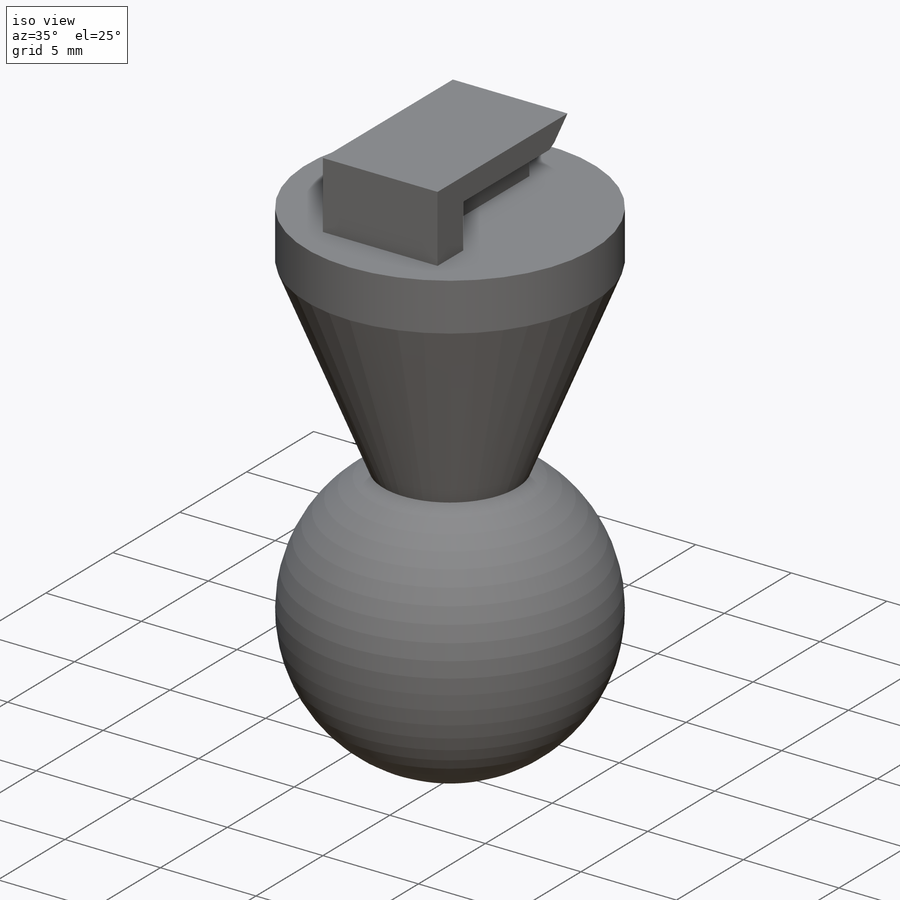
[diagram: iso view]
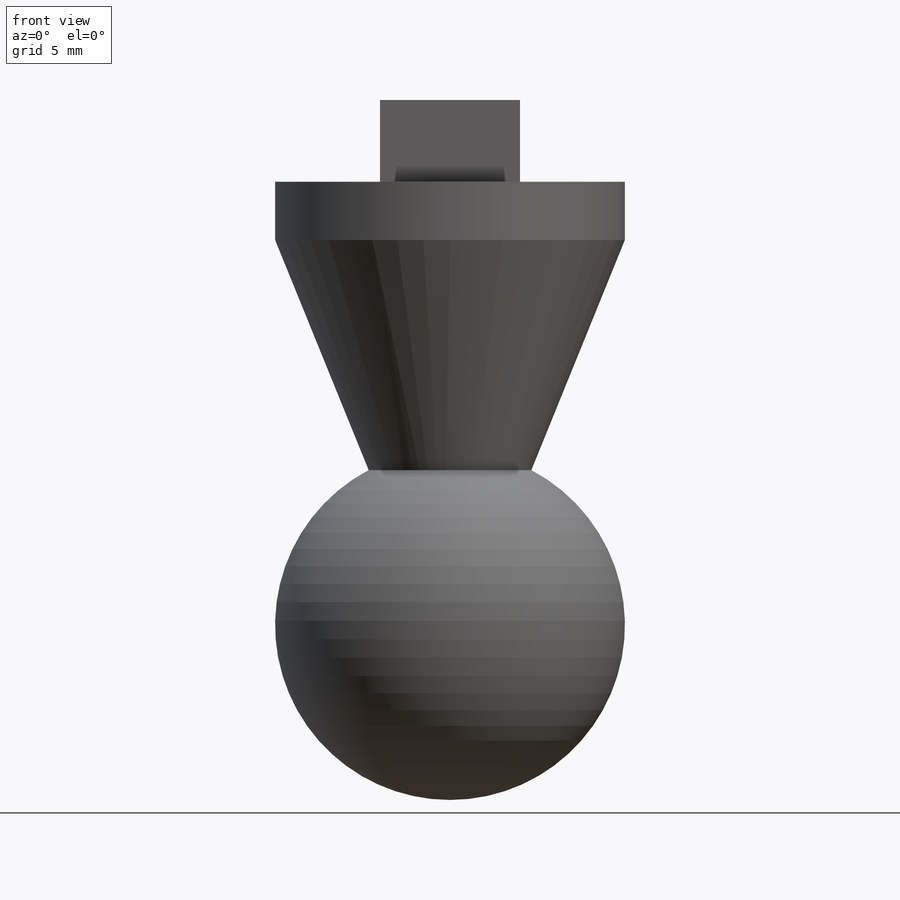
[diagram: front view]
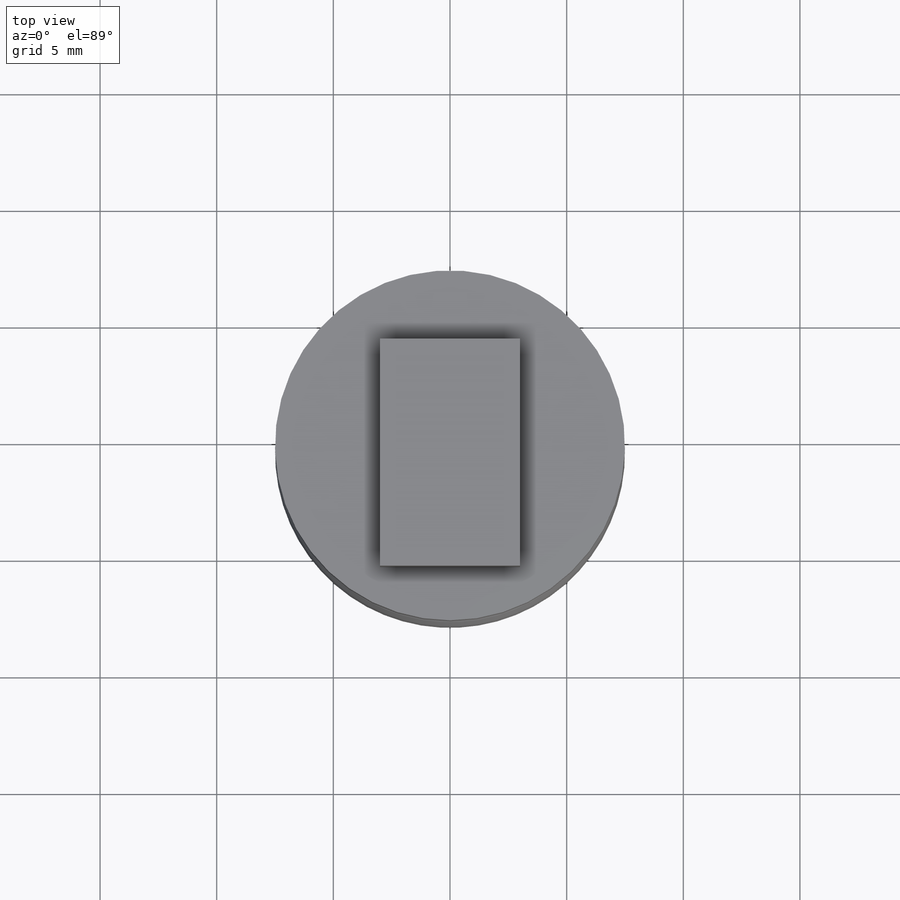
[diagram: top view]
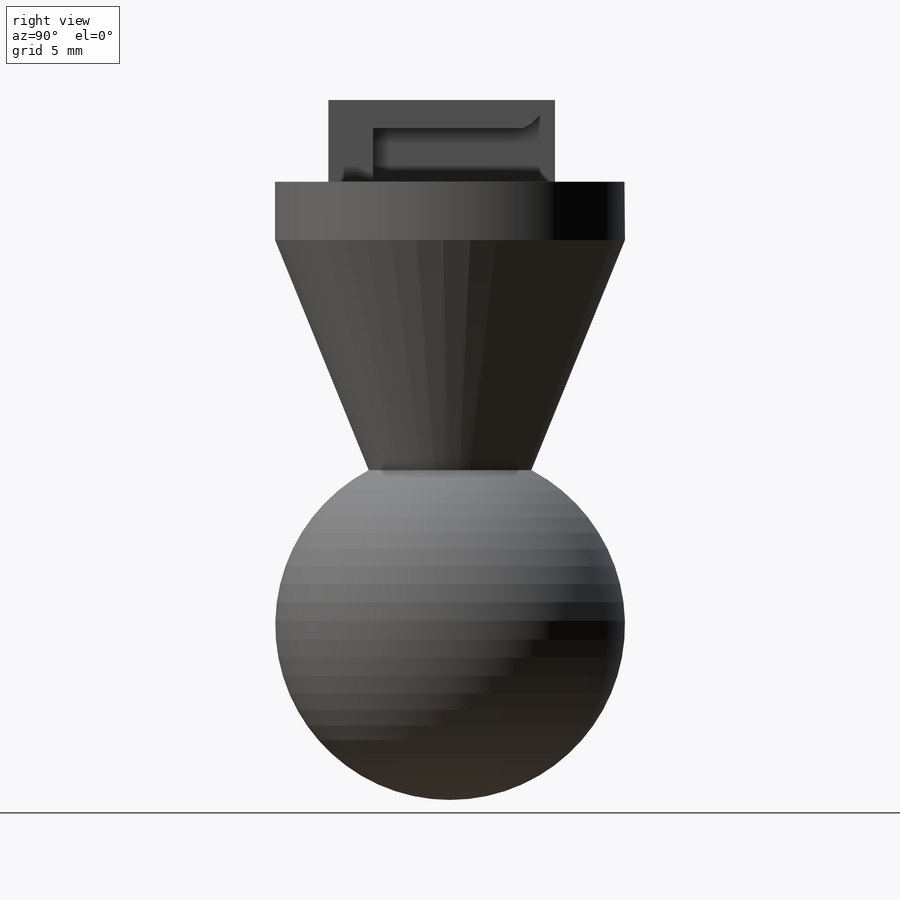
[diagram: right view]
SOLIDWORKS PART (.sldprt)
format: sldprt  version: not decoded by parser v0  size: 275,456 bytes
history: native  units: mm
features: sketch x8, extrude x5, plane x3, revolve x2, material x1 (+9 scaffold rows collapsed)
feature tree (28):
  scaffold x9  (default folders/planes/origin — collapsed)
  material  "Material <sin especificar>"
  plane  "Alzado"
  plane  "Planta"
  plane  "Vista lateral"
  sketch  "Croquis1"  dims[c1.D1=1.0mm c1.D2=1.0mm c1.D3=~9.779349mm c2.D3=45.0deg c2.D4=4.0mm c2.D5=9.0mm]
  extrude  "Saliente-Extruir1"  Depth=6mm
  sketch  "Croquis2"
  extrude  "Saliente-Extruir2"  Depth=2mm
  sketch  "Croquis3"  dims[D1=15.0mm]
  extrude  "Saliente-Extruir3"  Depth=2mm
  sketch  "Croquis4"  dims[D1=11.0mm]
  revolve  "Revolución1"  Angle=360deg
  sketch  "Croquis5"  dims[D1=15.0mm D2=11.0mm]
  revolve  "Revolución2"  Angle=360deg
  sketch  "Croquis6"
  sketch  "Croquis7"  dims[D1=0.2mm D2=~0.204455mm]
  extrude  "Saliente-Extruir4"  [1 undecoded]
  sketch  "Croquis8"  dims[D1=0.0mm]
  extrude  "Saliente-Extruir5"  Depth=0.5mm
decode coverage: 12 of 15 modeling features carry decoded parameters
note: ~ marks probable driven/reference dimensions
note: 1 parameter value undecoded
note: suppression state not decoded; provenance and decode notes live in map.json
